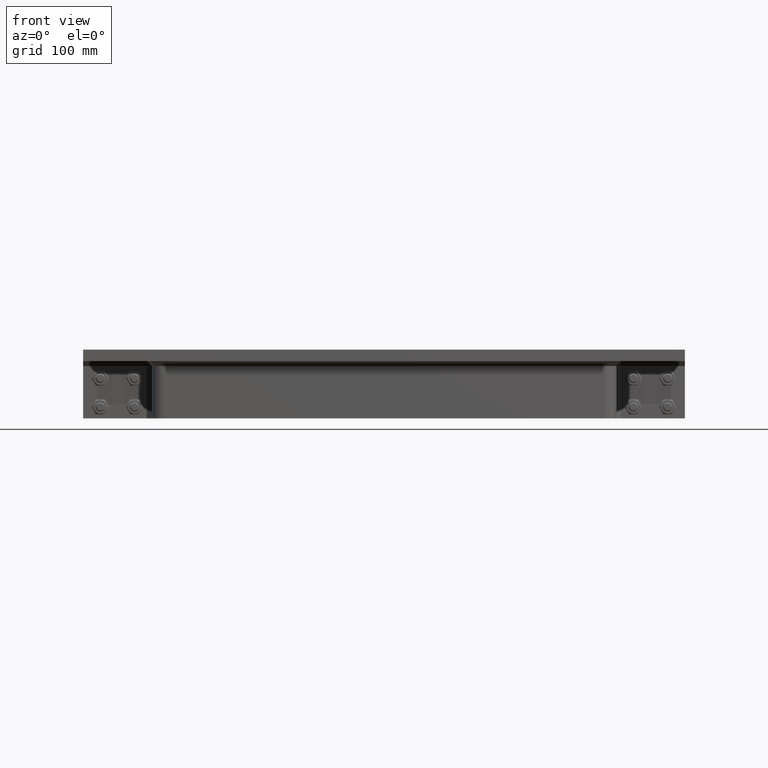
[diagram: clean part render]
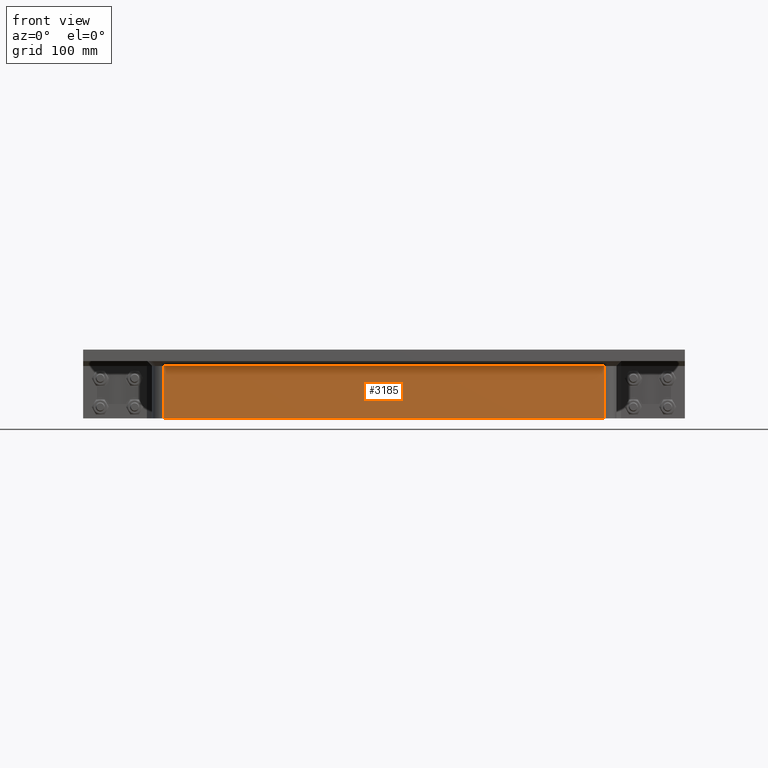
[diagram: same view with one face highlighted and labeled with its STEP entity id]
A machine part, front view. The second image highlights one B-rep face of the part: STEP entity #3185.
In plain terms, the highlighted planar face has unit normal (0, -1, 0).
Its self-contained STEP definition (entity closure, byte-faithful):
#592=FACE_OUTER_BOUND('',#811,.T.);
#811=EDGE_LOOP('',(#2517,#2518,#2519,#2520));
#1003=LINE('',#4870,#1248);
#1058=LINE('',#5061,#1303);
#1099=LINE('',#5165,#1344);
#1102=LINE('',#5174,#1347);
#1248=VECTOR('',#3906,10.);
#1303=VECTOR('',#4091,10.);
#1344=VECTOR('',#4208,10.);
#1347=VECTOR('',#4223,10.);
#1489=VERTEX_POINT('',#4862);
#1491=VERTEX_POINT('',#4868);
#1561=VERTEX_POINT('',#5058);
#1562=VERTEX_POINT('',#5060);
#1772=EDGE_CURVE('',#1491,#1489,#1003,.T.);
#1866=EDGE_CURVE('',#1561,#1562,#1058,.T.);
#1920=EDGE_CURVE('',#1489,#1561,#1099,.T.);
#1923=EDGE_CURVE('',#1491,#1562,#1102,.T.);
#2517=ORIENTED_EDGE('',*,*,#1772,.F.);
#2518=ORIENTED_EDGE('',*,*,#1923,.T.);
#2519=ORIENTED_EDGE('',*,*,#1866,.F.);
#2520=ORIENTED_EDGE('',*,*,#1920,.F.);
#3063=PLANE('',#3630);
#3185=ADVANCED_FACE('',(#592),#3063,.T.);
#3630=AXIS2_PLACEMENT_3D('',#5175,#4224,#4225);
#3906=DIRECTION('',(1.,0.,0.));
#4091=DIRECTION('',(-1.,0.,0.));
#4208=DIRECTION('',(0.,0.,-1.));
#4223=DIRECTION('',(0.,0.,-1.));
#4224=DIRECTION('center_axis',(0.,-1.,0.));
#4225=DIRECTION('ref_axis',(-1.,0.,0.));
#4862=CARTESIAN_POINT('',(192.75,-119.,-14.3));
#4868=CARTESIAN_POINT('',(-192.75,-119.,-14.3));
#4870=CARTESIAN_POINT('',(96.375,-119.,-14.3));
#5058=CARTESIAN_POINT('',(192.75,-119.,-60.));
#5060=CARTESIAN_POINT('',(-192.75,-119.,-60.));
#5061=CARTESIAN_POINT('',(-192.75,-119.,-60.));
#5165=CARTESIAN_POINT('',(192.75,-119.,0.));
#5174=CARTESIAN_POINT('',(-192.75,-119.,0.));
#5175=CARTESIAN_POINT('Origin',(192.75,-119.,0.));